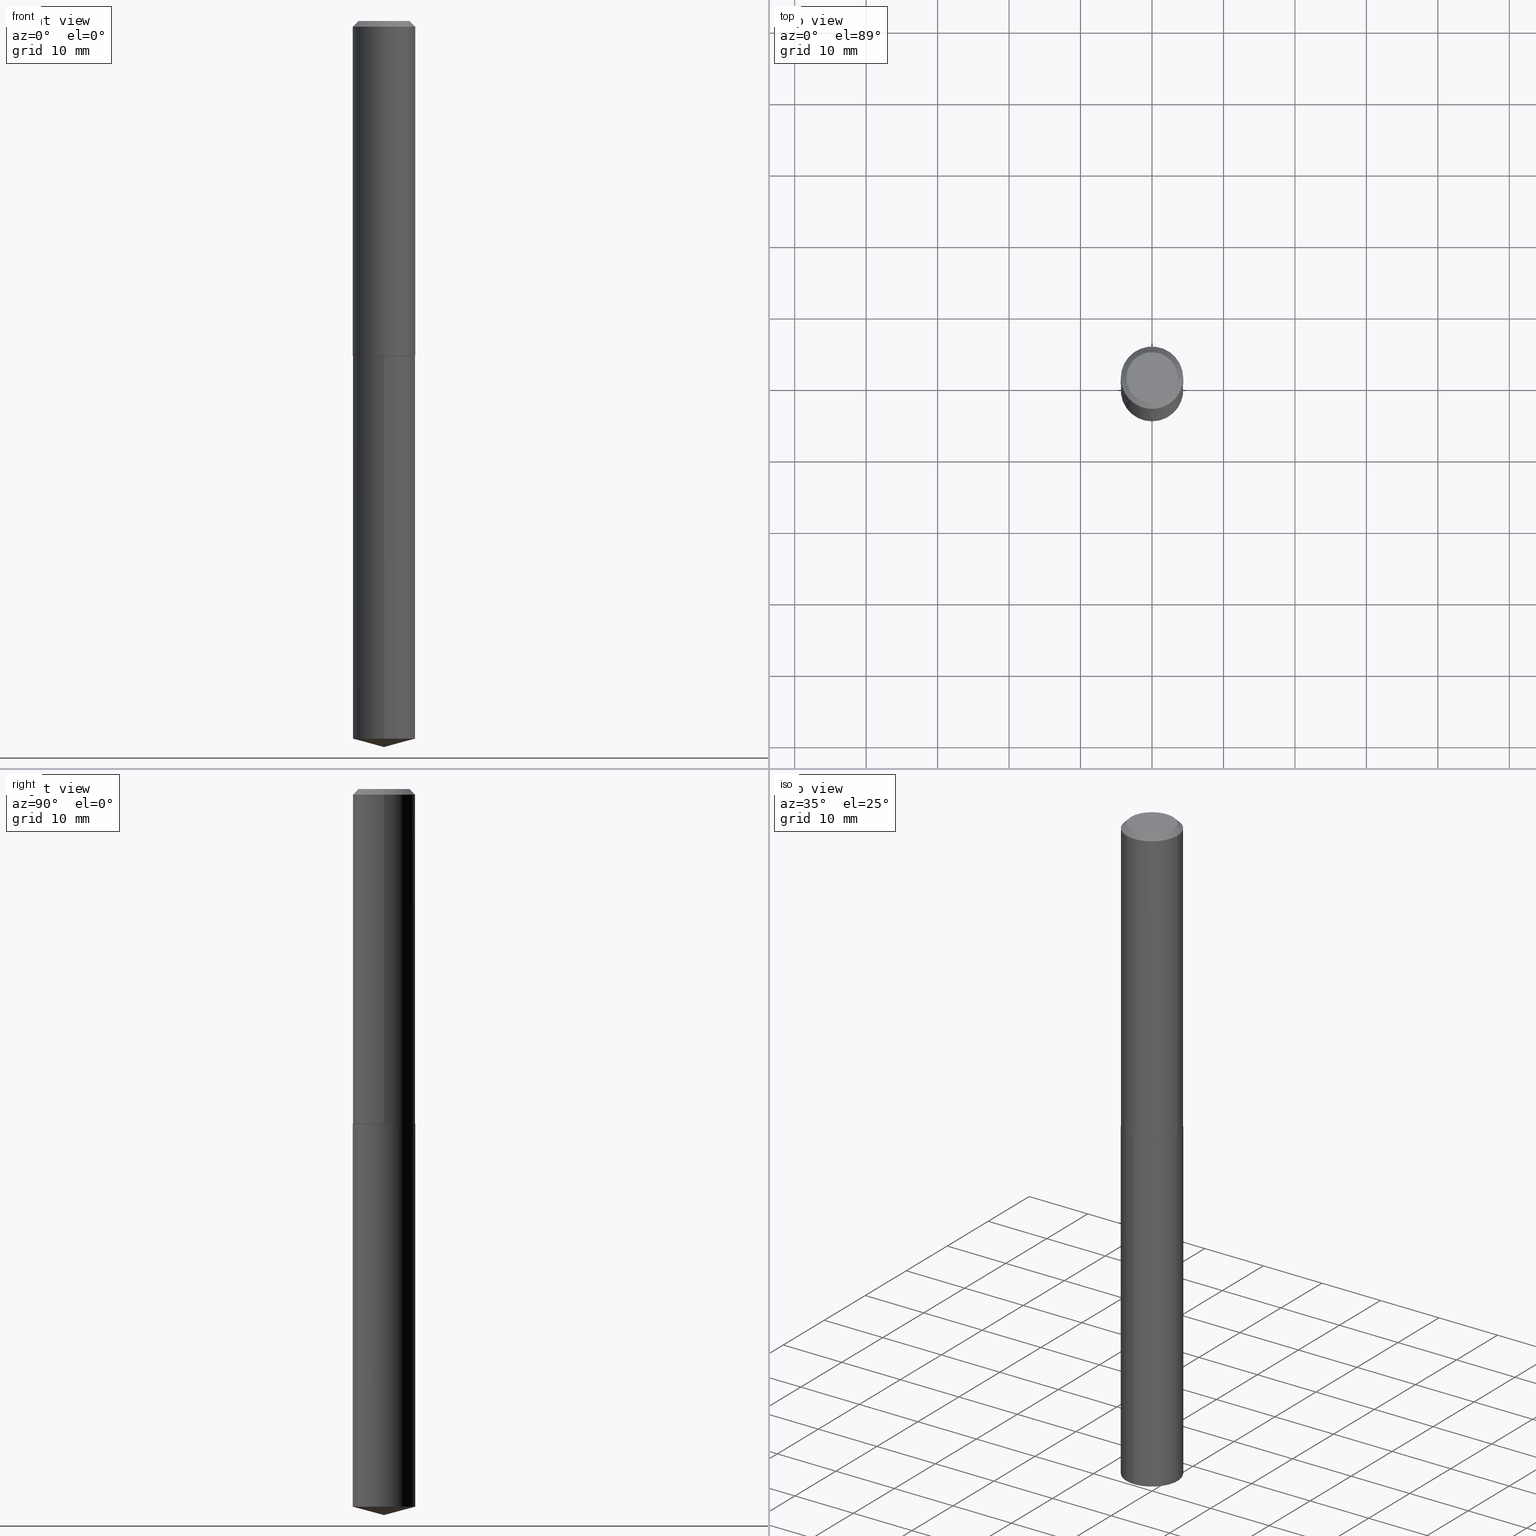
[diagram: canonical four-view strip — front | top / right | iso, engineering-drawing reading convention]
A machine part, canonical four-view strip (front | top / right | iso — engineering-drawing reading convention). The complete STEP part file that produces these views, byte-faithful:
ISO-10303-21;
HEADER;
FILE_DESCRIPTION (( 'STEP AP203' ),
    '1' );
FILE_NAME ('58080.STEP',
    '2024-04-23T01:33:14',
    ( '' ),
    ( '' ),
    'SwSTEP 2.0',
    'SolidWorks 2023',
    '' );
FILE_SCHEMA (( 'CONFIG_CONTROL_DESIGN' ));
ENDSEC;

DATA;
#1 = DIRECTION ( 'NONE',  ( -6.982962677686266711E-15, -1.000000000000000000, 3.178415350394722068E-15 ) ) ;
#2 = EDGE_CURVE ( 'NONE', #159, #296, #376, .T. ) ;
#3 = LINE ( 'NONE', #217, #315 ) ;
#4 = FACE_OUTER_BOUND ( 'NONE', #373, .T. ) ;
#5 = AXIS2_PLACEMENT_3D ( 'NONE', #31, #93, #35 ) ;
#6 = DIRECTION ( 'NONE',  ( 1.000000000000000000, -6.982962677686265922E-15, 4.876176775795935793E-29 ) ) ;
#7 = EDGE_CURVE ( 'NONE', #296, #159, #184, .T. ) ;
#8 = LOCAL_TIME ( 21, 33, 14.00000000000000000, #267 ) ;
#9 = DIRECTION ( 'NONE',  ( -2.445468806185136597E-29, 3.491481338843145583E-15, 1.000000000000000000 ) ) ;
#10 = CARTESIAN_POINT ( 'NONE',  ( -0.1406499999999999695, 1.036708096535996774E-15, 2.939152317883048057E-19 ) ) ;
#11 = VERTEX_POINT ( 'NONE', #29 ) ;
#12 = DIRECTION ( 'NONE',  ( -2.445468806185136597E-29, 3.491481338843145583E-15, 1.000000000000000000 ) ) ;
#13 = VECTOR ( 'NONE', #300, 39.37007874015748143 ) ;
#14 = AXIS2_PLACEMENT_3D ( 'NONE', #150, #94, #1 ) ;
#15 = ORIENTED_EDGE ( 'NONE', *, *, #36, .T. ) ;
#16 = CARTESIAN_POINT ( 'NONE',  ( -7.187605310182365995E-48, 1.026199547015271031E-33, 2.939152317953640130E-19 ) ) ;
#17 = PERSON_AND_ORGANIZATION ( #181, #273 ) ;
#18 = APPROVAL ( #110, 'UNSPECIFIED' ) ;
#19 = ORIENTED_EDGE ( 'NONE', *, *, #7, .T. ) ;
#20 = VECTOR ( 'NONE', #332, 39.37007874015748143 ) ;
#21 = DATE_AND_TIME ( #289, #8 ) ;
#22 = ORIENTED_EDGE ( 'NONE', *, *, #62, .F. ) ;
#23 = PERSON_AND_ORGANIZATION_ROLE ( 'creator' ) ;
#24 = DIRECTION ( 'NONE',  ( 0.7071067811865454633, -7.319954787623246579E-15, -0.7071067811865493491 ) ) ;
#25 = ORIENTED_EDGE ( 'NONE', *, *, #105, .T. ) ;
#26 = AXIS2_PLACEMENT_3D ( 'NONE', #294, #89, #327 ) ;
#27 = AXIS2_PLACEMENT_3D ( 'NONE', #157, #74, #225 ) ;
#28 = PERSON_AND_ORGANIZATION_ROLE ( 'classification_officer' ) ;
#29 = CARTESIAN_POINT ( 'NONE',  ( -0.1714000000000005242, -5.217073816292066888E-15, -1.843800000000000106 ) ) ;
#30 = CARTESIAN_POINT ( 'NONE',  ( 7.642090019328604414E-31, -1.091087918388490513E-16, -0.03125000000000021511 ) ) ;
#31 = CARTESIAN_POINT ( 'NONE',  ( 7.642090019328604414E-31, -1.091087918388490513E-16, -0.03125000000000021511 ) ) ;
#32 = AXIS2_PLACEMENT_3D ( 'NONE', #203, #145, #381 ) ;
#33 = LOCAL_TIME ( 21, 33, 14.00000000000000000, #146 ) ;
#34 = PLANE ( 'NONE',  #96 ) ;
#35 = DIRECTION ( 'NONE',  ( -1.000000000000000000, 6.982962677686265922E-15, 0.000000000000000000 ) ) ;
#36 = EDGE_CURVE ( 'NONE', #343, #61, #254, .T. ) ;
#37 = FACE_OUTER_BOUND ( 'NONE', #312, .T. ) ;
#38 = AXIS2_PLACEMENT_3D ( 'NONE', #366, #99, #304 ) ;
#39 = CARTESIAN_POINT ( 'NONE',  ( 1.221422962771708835E-15, 0.1718999999999935302, -1.843800000000000328 ) ) ;
#40 = DIRECTION ( 'NONE',  ( 1.000000000000000000, -6.982962677686268288E-15, 0.000000000000000000 ) ) ;
#41 = ORIENTED_EDGE ( 'NONE', *, *, #153, .F. ) ;
#42 = LENGTH_MEASURE_WITH_UNIT ( LENGTH_MEASURE( 0.02539999999999999897 ), #371 );
#43 = CC_DESIGN_PERSON_AND_ORGANIZATION_ASSIGNMENT ( #86, #238, ( #355 ) ) ;
#44 =( NAMED_UNIT ( * ) SI_UNIT ( $, .STERADIAN. ) SOLID_ANGLE_UNIT ( ) );
#45 = AXIS2_PLACEMENT_3D ( 'NONE', #239, #236, #148 ) ;
#46 = AXIS2_PLACEMENT_3D ( 'NONE', #69, #276, #183 ) ;
#47 = ORIENTED_EDGE ( 'NONE', *, *, #233, .F. ) ;
#48 = PERSON_AND_ORGANIZATION ( #181, #273 ) ;
#49 = EDGE_LOOP ( 'NONE', ( #19, #192, #195, #383 ) ) ;
#50 = PRODUCT_RELATED_PRODUCT_CATEGORY ( 'detail', '', ( #229 ) ) ;
#51 = SECURITY_CLASSIFICATION_LEVEL ( 'unclassified' ) ;
#52 = EDGE_LOOP ( 'NONE', ( #22, #345, #60, #226 ) ) ;
#53 = DATE_TIME_ROLE ( 'creation_date' ) ;
#54 = PLANE ( 'NONE',  #161 ) ;
#55 = CALENDAR_DATE ( 2024, 22, 4 ) ;
#56 = CYLINDRICAL_SURFACE ( 'NONE', #197, 0.1718999999999999695 ) ;
#57 = PERSON_AND_ORGANIZATION_ROLE ( 'creator' ) ;
#58 = EDGE_LOOP ( 'NONE', ( #25, #199 ) ) ;
#59 = COORDINATED_UNIVERSAL_TIME_OFFSET ( 5, 0, .BEHIND. ) ;
#60 = ORIENTED_EDGE ( 'NONE', *, *, #352, .T. ) ;
#61 = VERTEX_POINT ( 'NONE', #357 ) ;
#62 = EDGE_CURVE ( 'NONE', #11, #210, #331, .T. ) ;
#63 = FACE_OUTER_BOUND ( 'NONE', #49, .T. ) ;
#64 = CARTESIAN_POINT ( 'NONE',  ( 4.507732650441062191E-29, -6.435847551889570648E-15, -1.843299999999999939 ) ) ;
#65 = AXIS2_PLACEMENT_3D ( 'NONE', #30, #207, #351 ) ;
#66 = LOCAL_TIME ( 21, 33, 14.00000000000000000, #264 ) ;
#67 = CARTESIAN_POINT ( 'NONE',  ( 1.221422962771708441E-15, 0.1718999999999861195, -3.953939533821090535 ) ) ;
#68 = EDGE_CURVE ( 'NONE', #61, #224, #112, .T. ) ;
#69 = CARTESIAN_POINT ( 'NONE',  ( 4.507732650441062191E-29, -6.435847551889570648E-15, -1.843299999999999939 ) ) ;
#70 = CARTESIAN_POINT ( 'NONE',  ( 9.781931142747591603E-29, -1.396584591975933538E-14, -4.000000000000000000 ) ) ;
#71 = AXIS2_PLACEMENT_3D ( 'NONE', #95, #272, #306 ) ;
#72 = LINE ( 'NONE', #284, #132 ) ;
#73 = EDGE_LOOP ( 'NONE', ( #47, #106, #209, #349 ) ) ;
#74 = DIRECTION ( 'NONE',  ( -2.445468806185136597E-29, 3.491481338843145583E-15, 1.000000000000000000 ) ) ;
#75 = ADVANCED_FACE ( 'NONE', ( #235 ), #237, .T. ) ;
#76 = PRODUCT_DEFINITION_SHAPE ( 'NONE', 'NONE',  #281 ) ;
#77 = ORIENTED_EDGE ( 'NONE', *, *, #2, .T. ) ;
#78 = CARTESIAN_POINT ( 'NONE',  ( -0.1719000000000000250, -2.051055209092595308E-15, -0.03125000000000021511 ) ) ;
#79 = VERTEX_POINT ( 'NONE', #268 ) ;
#80 = DATE_AND_TIME ( #231, #204 ) ;
#81 = ORIENTED_EDGE ( 'NONE', *, *, #338, .T. ) ;
#82 = FACE_OUTER_BOUND ( 'NONE', #73, .T. ) ;
#83 = DIRECTION ( 'NONE',  ( 6.982962677686265922E-15, 1.000000000000000000, -3.491461479939833449E-15 ) ) ;
#84 = VECTOR ( 'NONE', #219, 39.37007874015748143 ) ;
#85 = CC_DESIGN_SECURITY_CLASSIFICATION ( #126, ( #355 ) ) ;
#86 = PERSON_AND_ORGANIZATION ( #181, #273 ) ;
#87 = ADVANCED_FACE ( 'NONE', ( #82 ), #299, .T. ) ;
#88 = PLANE ( 'NONE',  #178 ) ;
#89 = DIRECTION ( 'NONE',  ( -2.445482673583201242E-29, 3.491461479939833844E-15, 1.000000000000000000 ) ) ;
#90 = ORIENTED_EDGE ( 'NONE', *, *, #218, .T. ) ;
#91 = VECTOR ( 'NONE', #301, 39.37007874015748143 ) ;
#92 = ADVANCED_FACE ( 'NONE', ( #386 ), #54, .F. ) ;
#93 = DIRECTION ( 'NONE',  ( 2.445468806185136597E-29, -3.491481338843145583E-15, -1.000000000000000000 ) ) ;
#94 = DIRECTION ( 'NONE',  ( -2.445482673583201242E-29, 3.491461479939833844E-15, 1.000000000000000000 ) ) ;
#95 = CARTESIAN_POINT ( 'NONE',  ( 7.642090019328604414E-31, -1.091087918388490513E-16, -0.03125000000000021511 ) ) ;
#96 = AXIS2_PLACEMENT_3D ( 'NONE', #127, #152, #186 ) ;
#97 = DIRECTION ( 'NONE',  ( -2.445482673583201242E-29, 3.491461479939833844E-15, 1.000000000000000000 ) ) ;
#98 = ADVANCED_FACE ( 'NONE', ( #323 ), #56, .T. ) ;
#99 = DIRECTION ( 'NONE',  ( -2.445482673583201242E-29, 3.491461479939833844E-15, 1.000000000000000000 ) ) ;
#100 = APPROVAL_PERSON_ORGANIZATION ( #17, #361, #258 ) ;
#101 = FACE_OUTER_BOUND ( 'NONE', #52, .T. ) ;
#102 = ORIENTED_EDGE ( 'NONE', *, *, #2, .F. ) ;
#103 = DIRECTION ( 'NONE',  ( -2.445468806185136597E-29, 3.491481338843145583E-15, 1.000000000000000000 ) ) ;
#104 = CARTESIAN_POINT ( 'NONE',  ( 0.000000000000000000, 0.000000000000000000, 0.000000000000000000 ) ) ;
#105 = EDGE_CURVE ( 'NONE', #79, #280, #363, .T. ) ;
#106 = ORIENTED_EDGE ( 'NONE', *, *, #385, .T. ) ;
#107 = COORDINATED_UNIVERSAL_TIME_OFFSET ( 5, 0, .BEHIND. ) ;
#108 = AXIS2_PLACEMENT_3D ( 'NONE', #248, #97, #187 ) ;
#109 = ORIENTED_EDGE ( 'NONE', *, *, #249, .F. ) ;
#110 = APPROVAL_STATUS ( 'not_yet_approved' ) ;
#111 = CARTESIAN_POINT ( 'NONE',  ( -0.1719000000000002470, -5.214424589117955687E-15, -1.843299999999999939 ) ) ;
#112 = LINE ( 'NONE', #266, #215 ) ;
#113 = EDGE_CURVE ( 'NONE', #372, #11, #124, .T. ) ;
#114 = CARTESIAN_POINT ( 'NONE',  ( 9.669265053646563538E-29, -1.380506419219352593E-14, -3.953939533821090091 ) ) ;
#115 = CC_DESIGN_APPROVAL ( #18, ( #355 ) ) ;
#116 = EDGE_LOOP ( 'NONE', ( #149, #191, #81, #205 ) ) ;
#117 = APPROVAL_DATE_TIME ( #350, #18 ) ;
#118 = FACE_OUTER_BOUND ( 'NONE', #259, .T. ) ;
#119 = APPROVAL ( #142, 'UNSPECIFIED' ) ;
#120 = DIRECTION ( 'NONE',  ( -6.982962677686266711E-15, -1.000000000000000000, 3.178415350394722068E-15 ) ) ;
#121 = CYLINDRICAL_SURFACE ( 'NONE', #14, 0.1718999999999999695 ) ;
#122 = DIRECTION ( 'NONE',  ( -2.445468806185136597E-29, 3.491481338843145583E-15, 1.000000000000000000 ) ) ;
#123 = CARTESIAN_POINT ( 'NONE',  ( 1.221422962771656968E-15, 0.1718999999999935302, -1.843800000000000328 ) ) ;
#124 = CIRCLE ( 'NONE', #346, 0.1714000000000005242 ) ;
#125 = VECTOR ( 'NONE', #364, 39.37007874015748143 ) ;
#126 = SECURITY_CLASSIFICATION ( '', '', #51 ) ;
#127 = CARTESIAN_POINT ( 'NONE',  ( 2.456851963571843618E-29, -9.376322190294208513E-15, -1.843800000000000106 ) ) ;
#128 = CARTESIAN_POINT ( 'NONE',  ( 7.642090019328604414E-31, -1.091087918388490513E-16, -0.03125000000000021511 ) ) ;
#129 = CC_DESIGN_PERSON_AND_ORGANIZATION_ASSIGNMENT ( #165, #28, ( #126 ) ) ;
#130 = LINE ( 'NONE', #308, #339 ) ;
#131 = VERTEX_POINT ( 'NONE', #262 ) ;
#132 = VECTOR ( 'NONE', #252, 39.37007874015748143 ) ;
#133 = CARTESIAN_POINT ( 'NONE',  ( 4.508955384844155553E-29, -6.437593292558992940E-15, -1.843800000000000106 ) ) ;
#134 = ORIENTED_EDGE ( 'NONE', *, *, #113, .F. ) ;
#135 = DIRECTION ( 'NONE',  ( -2.445468806185136877E-29, 3.491481338843145188E-15, 1.000000000000000000 ) ) ;
#136 = ORIENTED_EDGE ( 'NONE', *, *, #352, .F. ) ;
#137 = APPROVAL_STATUS ( 'not_yet_approved' ) ;
#138 = AXIS2_PLACEMENT_3D ( 'NONE', #277, #122, #6 ) ;
#139 = ORIENTED_EDGE ( 'NONE', *, *, #113, .T. ) ;
#140 = DIRECTION ( 'NONE',  ( -6.982962677686266711E-15, -1.000000000000000000, 3.178415350394722068E-15 ) ) ;
#141 = ADVANCED_FACE ( 'NONE', ( #118 ), #88, .F. ) ;
#142 = APPROVAL_STATUS ( 'not_yet_approved' ) ;
#143 = CARTESIAN_POINT ( 'NONE',  ( 4.508955384844155553E-29, -6.437593292558992940E-15, -1.843800000000000106 ) ) ;
#144 = PERSON_AND_ORGANIZATION ( #181, #273 ) ;
#145 = DIRECTION ( 'NONE',  ( -2.445482673583201242E-29, 3.491461479939833844E-15, 1.000000000000000000 ) ) ;
#146 = COORDINATED_UNIVERSAL_TIME_OFFSET ( 5, 0, .BEHIND. ) ;
#147 = ADVANCED_FACE ( 'NONE', ( #4 ), #216, .T. ) ;
#148 = DIRECTION ( 'NONE',  ( 1.000000000000000000, -6.982962677686265922E-15, 4.876176775795935793E-29 ) ) ;
#149 = ORIENTED_EDGE ( 'NONE', *, *, #380, .F. ) ;
#150 = CARTESIAN_POINT ( 'NONE',  ( 4.508955384844154993E-29, -6.437593292558991362E-15, -1.843799999999999883 ) ) ;
#151 = AXIS2_PLACEMENT_3D ( 'NONE', #114, #174, #140 ) ;
#152 = DIRECTION ( 'NONE',  ( -2.438088387897960049E-29, 3.491481338843145188E-15, 1.000000000000000000 ) ) ;
#153 = EDGE_CURVE ( 'NONE', #280, #79, #291, .T. ) ;
#154 = LINE ( 'NONE', #123, #125 ) ;
#155 = CYLINDRICAL_SURFACE ( 'NONE', #138, 0.1719000000000001638 ) ;
#156 = VECTOR ( 'NONE', #246, 39.37007874015748143 ) ;
#157 = CARTESIAN_POINT ( 'NONE',  ( 4.507732650441062191E-29, -6.435847551889570648E-15, -1.843299999999999939 ) ) ;
#158 = CC_DESIGN_DATE_AND_TIME_ASSIGNMENT ( #297, #326, ( #126 ) ) ;
#159 = VERTEX_POINT ( 'NONE', #67 ) ;
#160 = ORIENTED_EDGE ( 'NONE', *, *, #233, .T. ) ;
#161 = AXIS2_PLACEMENT_3D ( 'NONE', #353, #358, #83 ) ;
#162 = DIRECTION ( 'NONE',  ( 1.000000000000000000, -6.982962677686264344E-15, 0.000000000000000000 ) ) ;
#163 = PERSON_AND_ORGANIZATION_ROLE ( 'design_owner' ) ;
#164 = EDGE_LOOP ( 'NONE', ( #166, #290, #90, #257 ) ) ;
#165 = PERSON_AND_ORGANIZATION ( #181, #273 ) ;
#166 = ORIENTED_EDGE ( 'NONE', *, *, #68, .F. ) ;
#167 = CIRCLE ( 'NONE', #71, 0.1719000000000000250 ) ;
#168 = CC_DESIGN_PERSON_AND_ORGANIZATION_ASSIGNMENT ( #173, #57, ( #281 ) ) ;
#169 = LOCAL_TIME ( 21, 33, 14.00000000000000000, #59 ) ;
#170 = CARTESIAN_POINT ( 'NONE',  ( -7.187605310182365995E-48, 1.026199547015271031E-33, 2.939152317953640130E-19 ) ) ;
#171 = PERSON_AND_ORGANIZATION ( #181, #273 ) ;
#172 = DIRECTION ( 'NONE',  ( -6.982962677686266711E-15, -1.000000000000000000, 3.178415350394722068E-15 ) ) ;
#173 = PERSON_AND_ORGANIZATION ( #181, #273 ) ;
#174 = DIRECTION ( 'NONE',  ( -2.445482673583201242E-29, 3.491461479939833844E-15, 1.000000000000000000 ) ) ;
#175 = ADVANCED_FACE ( 'NONE', ( #211 ), #330, .T. ) ;
#176 = APPLICATION_CONTEXT ( 'configuration controlled 3d designs of mechanical parts and assemblies' ) ;
#177 = CALENDAR_DATE ( 2024, 22, 4 ) ;
#178 = AXIS2_PLACEMENT_3D ( 'NONE', #180, #189, #182 ) ;
#179 = DIRECTION ( 'NONE',  ( 1.000000000000000000, -6.982962677686264344E-15, 0.000000000000000000 ) ) ;
#180 = CARTESIAN_POINT ( 'NONE',  ( -3.593802655091182997E-48, 5.130997735076355153E-34, 1.469576158976820065E-19 ) ) ;
#181 = PERSON ( 'UNSPECIFIED', 'UNSPECIFIED', 'UNSPECIFIED', ('UNSPECIFIED'), ('UNSPECIFIED'), ('UNSPECIFIED') ) ;
#182 = DIRECTION ( 'NONE',  ( -1.000000000000000000, 6.982962677686265922E-15, -4.876176775795935793E-29 ) ) ;
#183 = DIRECTION ( 'NONE',  ( 1.000000000000000000, -6.982962677686268288E-15, 0.000000000000000000 ) ) ;
#184 = CIRCLE ( 'NONE', #151, 0.1718999999999999695 ) ;
#185 = APPROVAL_PERSON_ORGANIZATION ( #144, #18, #234 ) ;
#186 = DIRECTION ( 'NONE',  ( 1.000000000000000000, -6.982962677686265922E-15, 4.876176775795935793E-29 ) ) ;
#187 = DIRECTION ( 'NONE',  ( -6.982962677686265922E-15, -1.000000000000000000, 3.510303681827633728E-15 ) ) ;
#188 = CC_DESIGN_DATE_AND_TIME_ASSIGNMENT ( #295, #53, ( #281 ) ) ;
#189 = DIRECTION ( 'NONE',  ( 2.438088387897960049E-29, -3.491481338843145188E-15, -1.000000000000000000 ) ) ;
#190 = CARTESIAN_POINT ( 'NONE',  ( 4.507732650441062191E-29, -6.435847551889570648E-15, -1.843299999999999939 ) ) ;
#191 = ORIENTED_EDGE ( 'NONE', *, *, #68, .T. ) ;
#192 = ORIENTED_EDGE ( 'NONE', *, *, #202, .T. ) ;
#193 = MANIFOLD_SOLID_BREP ( 'Body-Move/Copy2[2]', #320 ) ;
#194 =( CONVERSION_BASED_UNIT ( 'INCH', #42 ) LENGTH_UNIT ( ) NAMED_UNIT ( #269 ) );
#195 = ORIENTED_EDGE ( 'NONE', *, *, #105, .F. ) ;
#196 = ADVANCED_FACE ( 'NONE', ( #302 ), #34, .F. ) ;
#197 = AXIS2_PLACEMENT_3D ( 'NONE', #379, #325, #172 ) ;
#198 = AXIS2_PLACEMENT_3D ( 'NONE', #64, #12, #317 ) ;
#199 = ORIENTED_EDGE ( 'NONE', *, *, #153, .T. ) ;
#200 = APPROVAL_DATE_TIME ( #80, #361 ) ;
#201 = ORIENTED_EDGE ( 'NONE', *, *, #249, .T. ) ;
#202 = EDGE_CURVE ( 'NONE', #159, #280, #154, .T. ) ;
#203 = CARTESIAN_POINT ( 'NONE',  ( 9.669265053646563538E-29, -1.380506419219352593E-14, -3.953939533821090091 ) ) ;
#204 = LOCAL_TIME ( 21, 33, 14.00000000000000000, #107 ) ;
#205 = ORIENTED_EDGE ( 'NONE', *, *, #218, .F. ) ;
#206 = PERSON_AND_ORGANIZATION ( #181, #273 ) ;
#207 = DIRECTION ( 'NONE',  ( 2.445468806185136597E-29, -3.491481338843145583E-15, -1.000000000000000000 ) ) ;
#208 = ADVANCED_FACE ( 'NONE', ( #274 ), #265, .T. ) ;
#209 = ORIENTED_EDGE ( 'NONE', *, *, #328, .T. ) ;
#210 = VERTEX_POINT ( 'NONE', #359 ) ;
#211 = FACE_OUTER_BOUND ( 'NONE', #116, .T. ) ;
#212 = ADVANCED_FACE ( 'NONE', ( #362 ), #307, .T. ) ;
#213 = CARTESIAN_POINT ( 'NONE',  ( -1.200371284294171620E-15, -0.1719000000000137363, -3.953939533821089647 ) ) ;
#214 = DIRECTION ( 'NONE',  ( -2.445482673583201242E-29, 3.491461479939833844E-15, 1.000000000000000000 ) ) ;
#215 = VECTOR ( 'NONE', #24, 39.37007874015748854 ) ;
#216 = CONICAL_SURFACE ( 'NONE', #46, 0.1719000000000002470, 0.7853981633970044118 ) ;
#217 = CARTESIAN_POINT ( 'NONE',  ( -0.1719000000000000250, 1.091262492455420141E-15, -0.03125000000000021511 ) ) ;
#218 = EDGE_CURVE ( 'NONE', #343, #318, #3, .T. ) ;
#219 = DIRECTION ( 'NONE',  ( -2.445482673583200962E-29, 3.491461479939833449E-15, 1.000000000000000000 ) ) ;
#220 = DIRECTION ( 'NONE',  ( 1.000000000000000000, -6.982962677686266711E-15, 4.876175800840154318E-29 ) ) ;
#221 = EDGE_LOOP ( 'NONE', ( #288, #77, #283, #41 ) ) ;
#222 = AXIS2_PLACEMENT_3D ( 'NONE', #190, #369, #40 ) ;
#223 = MECHANICAL_CONTEXT ( 'NONE', #176, 'mechanical' ) ;
#224 = VERTEX_POINT ( 'NONE', #336 ) ;
#225 = DIRECTION ( 'NONE',  ( 1.000000000000000000, -6.982962677686268288E-15, 0.000000000000000000 ) ) ;
#226 = ORIENTED_EDGE ( 'NONE', *, *, #385, .F. ) ;
#227 = DIRECTION ( 'NONE',  ( 1.000000000000000000, 0.000000000000000000, 0.000000000000000000 ) ) ;
#228 = VERTEX_POINT ( 'NONE', #243 ) ;
#229 = PRODUCT ( '58080', '58080', '', ( #223 ) ) ;
#230 = AXIS2_PLACEMENT_3D ( 'NONE', #104, #310, #227 ) ;
#231 = CALENDAR_DATE ( 2024, 22, 4 ) ;
#232 = ORIENTED_EDGE ( 'NONE', *, *, #309, .T. ) ;
#233 = EDGE_CURVE ( 'NONE', #210, #318, #333, .T. ) ;
#234 = APPROVAL_ROLE ( '' ) ;
#235 = FACE_OUTER_BOUND ( 'NONE', #164, .T. ) ;
#236 = DIRECTION ( 'NONE',  ( -2.445468806185136597E-29, 3.491481338843145583E-15, 1.000000000000000000 ) ) ;
#237 = CONICAL_SURFACE ( 'NONE', #65, 0.1719000000000000250, 0.7853981633974456145 ) ;
#238 = PERSON_AND_ORGANIZATION_ROLE ( 'design_supplier' ) ;
#239 = CARTESIAN_POINT ( 'NONE',  ( 0.000000000000000000, 0.000000000000000000, 0.000000000000000000 ) ) ;
#240 = ADVANCED_FACE ( 'NONE', ( #37 ), #155, .T. ) ;
#241 = ORIENTED_EDGE ( 'NONE', *, *, #7, .F. ) ;
#242 = ORIENTED_EDGE ( 'NONE', *, *, #322, .F. ) ;
#243 = CARTESIAN_POINT ( 'NONE',  ( 0.1719000000000002470, -7.636218836183841467E-15, -1.843299999999999939 ) ) ;
#244 = AXIS2_PLACEMENT_3D ( 'NONE', #334, #214, #120 ) ;
#245 = EDGE_CURVE ( 'NONE', #296, #79, #247, .T. ) ;
#246 = DIRECTION ( 'NONE',  ( -6.745023994389839133E-15, -0.9659258262890674240, 0.2588190451025236816 ) ) ;
#247 = LINE ( 'NONE', #251, #84 ) ;
#248 = CARTESIAN_POINT ( 'NONE',  ( -8.649694029103720724E-28, 1.234932308478527804E-13, 35.37007874015748143 ) ) ;
#249 = EDGE_CURVE ( 'NONE', #131, #159, #337, .T. ) ;
#250 = CIRCLE ( 'NONE', #222, 0.1719000000000002470 ) ;
#251 = CARTESIAN_POINT ( 'NONE',  ( -1.200371284294223882E-15, -0.1719000000000064365, -1.843799999999999439 ) ) ;
#252 = DIRECTION ( 'NONE',  ( 0.7071067811862336017, -2.468850131078969088E-15, 0.7071067811868614328 ) ) ;
#253 = ORIENTED_EDGE ( 'NONE', *, *, #286, .F. ) ;
#254 = CIRCLE ( 'NONE', #329, 0.1406499999999999695 ) ;
#255 = CC_DESIGN_PERSON_AND_ORGANIZATION_ASSIGNMENT ( #171, #23, ( #355 ) ) ;
#256 = ORIENTED_EDGE ( 'NONE', *, *, #286, .T. ) ;
#257 = ORIENTED_EDGE ( 'NONE', *, *, #271, .T. ) ;
#258 = APPROVAL_ROLE ( '' ) ;
#259 = EDGE_LOOP ( 'NONE', ( #15, #375 ) ) ;
#260 = SHAPE_DEFINITION_REPRESENTATION ( #76, #387 ) ;
#261 = DIRECTION ( 'NONE',  ( 1.000000000000000000, -6.982962677686266711E-15, 4.876175800840154318E-29 ) ) ;
#262 = CARTESIAN_POINT ( 'NONE',  ( 9.781930694332804968E-29, -1.396584591975933538E-14, -4.000000000000000000 ) ) ;
#263 = ADVANCED_FACE ( 'NONE', ( #63 ), #121, .T. ) ;
#264 = COORDINATED_UNIVERSAL_TIME_OFFSET ( 5, 0, .BEHIND. ) ;
#265 = CONICAL_SURFACE ( 'NONE', #38, 146.9311341562552968, 1.308996938995747650 ) ;
#266 = CARTESIAN_POINT ( 'NONE',  ( 0.1719000000000000250, -1.288428397655775580E-15, -0.03125000000000021511 ) ) ;
#267 = COORDINATED_UNIVERSAL_TIME_OFFSET ( 5, 0, .BEHIND. ) ;
#268 = CARTESIAN_POINT ( 'NONE',  ( -1.200371284294223882E-15, -0.1719000000000064365, -1.843799999999999439 ) ) ;
#269 = DIMENSIONAL_EXPONENTS ( 1.000000000000000000, 0.000000000000000000, 0.000000000000000000, 0.000000000000000000, 0.000000000000000000, 0.000000000000000000, 0.000000000000000000 ) ;
#270 = LINE ( 'NONE', #389, #156 ) ;
#271 = EDGE_CURVE ( 'NONE', #318, #224, #167, .T. ) ;
#272 = DIRECTION ( 'NONE',  ( -2.445468806185136597E-29, 3.491481338843145583E-15, 1.000000000000000000 ) ) ;
#273 = ORGANIZATION ( 'UNSPECIFIED', 'UNSPECIFIED', '' ) ;
#274 = FACE_OUTER_BOUND ( 'NONE', #293, .T. ) ;
#275 = DESIGN_CONTEXT ( 'detailed design', #354, 'design' ) ;
#276 = DIRECTION ( 'NONE',  ( -2.445468806185136597E-29, 3.491481338843145583E-15, 1.000000000000000000 ) ) ;
#277 = CARTESIAN_POINT ( 'NONE',  ( 0.000000000000000000, 0.000000000000000000, 0.000000000000000000 ) ) ;
#278 = AXIS2_PLACEMENT_3D ( 'NONE', #128, #9, #374 ) ;
#279 = DIRECTION ( 'NONE',  ( -2.445468806185136597E-29, 3.491481338843145583E-15, 1.000000000000000000 ) ) ;
#280 = VERTEX_POINT ( 'NONE', #39 ) ;
#281 = PRODUCT_DEFINITION ( 'UNKNOWN', '', #355, #275 ) ;
#282 =( NAMED_UNIT ( * ) PLANE_ANGLE_UNIT ( ) SI_UNIT ( $, .RADIAN. ) );
#283 = ORIENTED_EDGE ( 'NONE', *, *, #245, .T. ) ;
#284 = CARTESIAN_POINT ( 'NONE',  ( 0.1719000000000002470, -7.636218836183841467E-15, -1.843299999999999939 ) ) ;
#285 = EDGE_LOOP ( 'NONE', ( #109, #256, #102 ) ) ;
#286 = EDGE_CURVE ( 'NONE', #131, #296, #270, .T. ) ;
#287 = APPLICATION_PROTOCOL_DEFINITION ( 'international standard', 'config_control_design', 1994, #354 ) ;
#288 = ORIENTED_EDGE ( 'NONE', *, *, #202, .F. ) ;
#289 = CALENDAR_DATE ( 2024, 22, 4 ) ;
#290 = ORIENTED_EDGE ( 'NONE', *, *, #36, .F. ) ;
#291 = CIRCLE ( 'NONE', #244, 0.1718999999999999695 ) ;
#292 = APPROVAL_ROLE ( '' ) ;
#293 = EDGE_LOOP ( 'NONE', ( #253, #201, #241 ) ) ;
#294 = CARTESIAN_POINT ( 'NONE',  ( 4.508955384844154993E-29, -6.437593292558991362E-15, -1.843799999999999883 ) ) ;
#295 = DATE_AND_TIME ( #55, #33 ) ;
#296 = VERTEX_POINT ( 'NONE', #213 ) ;
#297 = DATE_AND_TIME ( #177, #169 ) ;
#298 = CC_DESIGN_APPROVAL ( #361, ( #281 ) ) ;
#299 = CYLINDRICAL_SURFACE ( 'NONE', #45, 0.1719000000000001638 ) ;
#300 = DIRECTION ( 'NONE',  ( -0.7071067811862336017, 7.493145998869219778E-15, 0.7071067811868614328 ) ) ;
#301 = DIRECTION ( 'NONE',  ( -2.445468806185136877E-29, 3.491481338843145188E-15, 1.000000000000000000 ) ) ;
#302 = FACE_OUTER_BOUND ( 'NONE', #370, .T. ) ;
#303 =( GEOMETRIC_REPRESENTATION_CONTEXT ( 3 ) GLOBAL_UNCERTAINTY_ASSIGNED_CONTEXT ( ( #367 ) ) GLOBAL_UNIT_ASSIGNED_CONTEXT ( ( #194, #282, #44 ) ) REPRESENTATION_CONTEXT ( 'NONE', 'WORKASPACE' ) );
#304 = DIRECTION ( 'NONE',  ( -6.982962677686265922E-15, -1.000000000000000000, 3.510303681827633728E-15 ) ) ;
#305 = DIRECTION ( 'NONE',  ( -0.7071067811865454633, 2.468850131082235761E-15, -0.7071067811865493491 ) ) ;
#306 = DIRECTION ( 'NONE',  ( 1.000000000000000000, -6.982962677686265922E-15, 0.000000000000000000 ) ) ;
#307 = CONICAL_SURFACE ( 'NONE', #108, 146.9311341562552968, 1.308996938995747650 ) ;
#308 = CARTESIAN_POINT ( 'NONE',  ( 0.1719000000000001638, -1.200371284294270227E-15, 8.382147877593221486E-30 ) ) ;
#309 = EDGE_CURVE ( 'NONE', #228, #210, #365, .T. ) ;
#310 = DIRECTION ( 'NONE',  ( 0.000000000000000000, 0.000000000000000000, 1.000000000000000000 ) ) ;
#311 = ORIENTED_EDGE ( 'NONE', *, *, #62, .T. ) ;
#312 = EDGE_LOOP ( 'NONE', ( #232, #160, #316, #340 ) ) ;
#313 = CLOSED_SHELL ( 'NONE', ( #263, #208, #212, #98, #92 ) ) ;
#314 = ADVANCED_FACE ( 'NONE', ( #101 ), #390, .T. ) ;
#315 = VECTOR ( 'NONE', #305, 39.37007874015748854 ) ;
#316 = ORIENTED_EDGE ( 'NONE', *, *, #338, .F. ) ;
#317 = DIRECTION ( 'NONE',  ( 1.000000000000000000, -6.982962677686268288E-15, 0.000000000000000000 ) ) ;
#318 = VERTEX_POINT ( 'NONE', #78 ) ;
#319 = DIRECTION ( 'NONE',  ( -2.445468806185136597E-29, 3.491481338843145583E-15, 1.000000000000000000 ) ) ;
#320 = CLOSED_SHELL ( 'NONE', ( #175, #240, #147, #196, #314, #87, #75, #141 ) ) ;
#321 = CIRCLE ( 'NONE', #278, 0.1719000000000000250 ) ;
#322 = EDGE_CURVE ( 'NONE', #11, #372, #377, .T. ) ;
#323 = FACE_OUTER_BOUND ( 'NONE', #221, .T. ) ;
#324 = MANIFOLD_SOLID_BREP ( 'Body-Move/Copy2[1]', #313 ) ;
#325 = DIRECTION ( 'NONE',  ( -2.445482673583201242E-29, 3.491461479939833844E-15, 1.000000000000000000 ) ) ;
#326 = DATE_TIME_ROLE ( 'classification_date' ) ;
#327 = DIRECTION ( 'NONE',  ( -6.982962677686266711E-15, -1.000000000000000000, 3.178415350394722068E-15 ) ) ;
#328 = EDGE_CURVE ( 'NONE', #228, #224, #130, .T. ) ;
#329 = AXIS2_PLACEMENT_3D ( 'NONE', #170, #319, #261 ) ;
#330 = CONICAL_SURFACE ( 'NONE', #5, 0.1719000000000000250, 0.7853981633974456145 ) ;
#331 = LINE ( 'NONE', #111, #13 ) ;
#332 = DIRECTION ( 'NONE',  ( 6.863315791527692682E-15, 0.9659258262890693114, 0.2588190451025169092 ) ) ;
#333 = LINE ( 'NONE', #360, #91 ) ;
#334 = CARTESIAN_POINT ( 'NONE',  ( 4.508955384844154993E-29, -6.437593292558991362E-15, -1.843799999999999883 ) ) ;
#335 = AXIS2_PLACEMENT_3D ( 'NONE', #133, #279, #162 ) ;
#336 = CARTESIAN_POINT ( 'NONE',  ( 0.1719000000000000250, -1.309480076133118342E-15, -0.03125000000000021511 ) ) ;
#337 = LINE ( 'NONE', #70, #20 ) ;
#338 = EDGE_CURVE ( 'NONE', #224, #318, #321, .T. ) ;
#339 = VECTOR ( 'NONE', #135, 39.37007874015748143 ) ;
#340 = ORIENTED_EDGE ( 'NONE', *, *, #328, .F. ) ;
#341 = APPROVAL_PERSON_ORGANIZATION ( #206, #119, #292 ) ;
#342 = CARTESIAN_POINT ( 'NONE',  ( 0.1714000000000005242, -7.634473095514422330E-15, -1.843800000000000106 ) ) ;
#343 = VERTEX_POINT ( 'NONE', #10 ) ;
#344 = APPLICATION_PROTOCOL_DEFINITION ( 'international standard', 'config_control_design', 1994, #176 ) ;
#345 = ORIENTED_EDGE ( 'NONE', *, *, #322, .T. ) ;
#346 = AXIS2_PLACEMENT_3D ( 'NONE', #143, #356, #179 ) ;
#347 = AXIS2_PLACEMENT_3D ( 'NONE', #16, #103, #220 ) ;
#348 = CIRCLE ( 'NONE', #347, 0.1406499999999999695 ) ;
#349 = ORIENTED_EDGE ( 'NONE', *, *, #271, .F. ) ;
#350 = DATE_AND_TIME ( #382, #66 ) ;
#351 = DIRECTION ( 'NONE',  ( -1.000000000000000000, 6.982962677686265922E-15, 0.000000000000000000 ) ) ;
#352 = EDGE_CURVE ( 'NONE', #372, #228, #72, .T. ) ;
#353 = CARTESIAN_POINT ( 'NONE',  ( 4.508955384844154993E-29, -6.437593292558991362E-15, -1.843799999999999883 ) ) ;
#354 = APPLICATION_CONTEXT ( 'configuration controlled 3d designs of mechanical parts and assemblies' ) ;
#355 = PRODUCT_DEFINITION_FORMATION_WITH_SPECIFIED_SOURCE ( 'ANY', '', #229, .NOT_KNOWN. ) ;
#356 = DIRECTION ( 'NONE',  ( -2.445468806185136597E-29, 3.491481338843145583E-15, 1.000000000000000000 ) ) ;
#357 = CARTESIAN_POINT ( 'NONE',  ( 0.1406499999999999695, -1.126678720521170652E-15, 2.939152318027373395E-19 ) ) ;
#358 = DIRECTION ( 'NONE',  ( 2.445482673583201242E-29, -3.491461479939833449E-15, -1.000000000000000000 ) ) ;
#359 = CARTESIAN_POINT ( 'NONE',  ( -0.1719000000000002470, -5.214424589117955687E-15, -1.843299999999999939 ) ) ;
#360 = CARTESIAN_POINT ( 'NONE',  ( -0.1719000000000001638, 1.221422962771613383E-15, -8.455649420148191587E-30 ) ) ;
#361 = APPROVAL ( #137, 'UNSPECIFIED' ) ;
#362 = FACE_OUTER_BOUND ( 'NONE', #285, .T. ) ;
#363 = CIRCLE ( 'NONE', #26, 0.1718999999999999695 ) ;
#364 = DIRECTION ( 'NONE',  ( -2.445482673583200962E-29, 3.491461479939833449E-15, 1.000000000000000000 ) ) ;
#365 = CIRCLE ( 'NONE', #198, 0.1719000000000002470 ) ;
#366 = CARTESIAN_POINT ( 'NONE',  ( -8.649694029103720724E-28, 1.234932308478527804E-13, 35.37007874015748143 ) ) ;
#367 = UNCERTAINTY_MEASURE_WITH_UNIT (LENGTH_MEASURE( 1.000000000000000082E-05 ), #194, 'distance_accuracy_value', 'NONE');
#368 = CC_DESIGN_PERSON_AND_ORGANIZATION_ASSIGNMENT ( #48, #163, ( #229 ) ) ;
#369 = DIRECTION ( 'NONE',  ( -2.445468806185136597E-29, 3.491481338843145583E-15, 1.000000000000000000 ) ) ;
#370 = EDGE_LOOP ( 'NONE', ( #134, #242 ) ) ;
#371 =( LENGTH_UNIT ( ) NAMED_UNIT ( * ) SI_UNIT ( $, .METRE. ) );
#372 = VERTEX_POINT ( 'NONE', #342 ) ;
#373 = EDGE_LOOP ( 'NONE', ( #139, #311, #388, #136 ) ) ;
#374 = DIRECTION ( 'NONE',  ( 1.000000000000000000, -6.982962677686265922E-15, 0.000000000000000000 ) ) ;
#375 = ORIENTED_EDGE ( 'NONE', *, *, #380, .T. ) ;
#376 = CIRCLE ( 'NONE', #32, 0.1718999999999999695 ) ;
#377 = CIRCLE ( 'NONE', #335, 0.1714000000000005242 ) ;
#378 = APPROVAL_DATE_TIME ( #21, #119 ) ;
#379 = CARTESIAN_POINT ( 'NONE',  ( 4.508955384844154993E-29, -6.437593292558991362E-15, -1.843799999999999883 ) ) ;
#380 = EDGE_CURVE ( 'NONE', #61, #343, #348, .T. ) ;
#381 = DIRECTION ( 'NONE',  ( -6.982962677686266711E-15, -1.000000000000000000, 3.178415350394722068E-15 ) ) ;
#382 = CALENDAR_DATE ( 2024, 22, 4 ) ;
#383 = ORIENTED_EDGE ( 'NONE', *, *, #245, .F. ) ;
#384 = CC_DESIGN_APPROVAL ( #119, ( #126 ) ) ;
#385 = EDGE_CURVE ( 'NONE', #210, #228, #250, .T. ) ;
#386 = FACE_OUTER_BOUND ( 'NONE', #58, .T. ) ;
#387 = ADVANCED_BREP_SHAPE_REPRESENTATION ( '58080', ( #324, #193, #230 ), #303 ) ;
#388 = ORIENTED_EDGE ( 'NONE', *, *, #309, .F. ) ;
#389 = CARTESIAN_POINT ( 'NONE',  ( 9.781879556915703088E-29, -1.396591915145118902E-14, -4.000000000000000000 ) ) ;
#390 = CONICAL_SURFACE ( 'NONE', #27, 0.1719000000000002470, 0.7853981633970044118 ) ;
ENDSEC;
END-ISO-10303-21;
